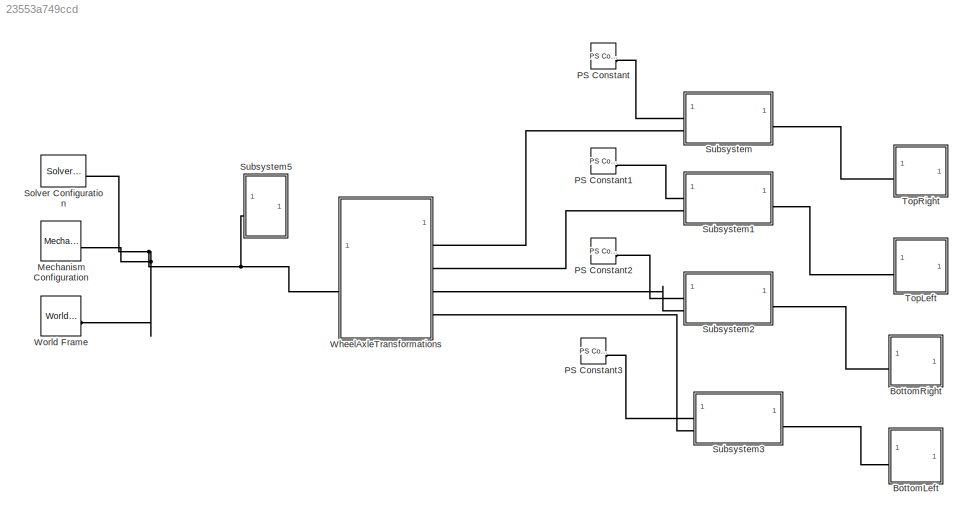
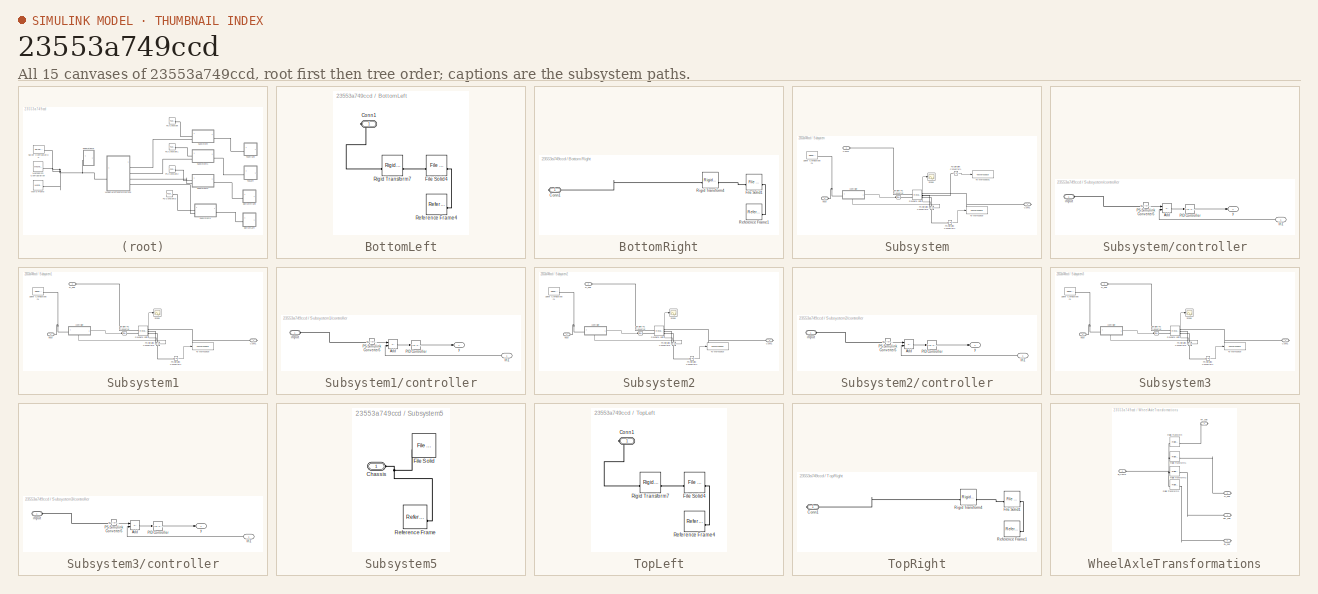
[diagram: thumbnail index - all 15 canvases of the model, root first then tree order]
MODEL slx_23553a749ccd
KIND model
CONFIG AbsTol = auto
CONFIG EnableMultiTasking = off
CONFIG FixedStep = auto
CONFIG MaxStep = auto
CONFIG MinStep = auto
CONFIG RelTol = 1e-3
CONFIG SampleTimeConstraint = Unconstrained
CONFIG SolverName = VariableStepAuto
CONFIG StartTime = 0.0
CONFIG StopTime = 10
BLOCK [SubSystem] BottomLeft
BLOCK [PMIOPort] BottomLeft/Conn1
  Side = Right
BLOCK [Reference] BottomLeft/File Solid4  REF=sm_lib/Body Elements/File Solid
  NameLocation = left
  SourceBlock = sm_lib/Body Elements/File Solid
  SourceType = File Solid
BLOCK [Reference] BottomLeft/Reference Frame4  REF=sm_lib/Frames and
Transforms/Reference
Frame
  SourceBlock = sm_lib/Frames and\nTransforms/Reference\nFrame
  SourceType = Reference\nFrame
BLOCK [Reference] BottomLeft/Rigid Transform7  REF=sm_lib/Frames and
Transforms/Rigid
Transform
  SourceBlock = sm_lib/Frames and\nTransforms/Rigid\nTransform
  SourceType = Rigid\nTransform
BLOCK [SubSystem] BottomRight
BLOCK [PMIOPort] BottomRight/Conn1
  Side = Right
BLOCK [Reference] BottomRight/File Solid1  REF=sm_lib/Body Elements/File Solid
  NameLocation = left
  SourceBlock = sm_lib/Body Elements/File Solid
  SourceType = File Solid
BLOCK [Reference] BottomRight/Reference Frame1  REF=sm_lib/Frames and
Transforms/Reference
Frame
  SourceBlock = sm_lib/Frames and\nTransforms/Reference\nFrame
  SourceType = Reference\nFrame
BLOCK [Reference] BottomRight/Rigid Transform4  REF=sm_lib/Frames and
Transforms/Rigid
Transform
  SourceBlock = sm_lib/Frames and\nTransforms/Rigid\nTransform
  SourceType = Rigid\nTransform
BLOCK [Reference] Mechanism Configuration  REF=sm_lib/Utilities/Mechanism
Configuration
  SourceBlock = sm_lib/Utilities/Mechanism\nConfiguration
  SourceType = Mechanism\nConfiguration
BLOCK [Reference] PS Constant  REF=fl_lib/Physical Signals/Sources/PS Constant
  SourceBlock = fl_lib/Physical Signals/Sources/PS Constant
  SourceType = PS Constant
BLOCK [Reference] PS Constant1  REF=fl_lib/Physical Signals/Sources/PS Constant
  SourceBlock = fl_lib/Physical Signals/Sources/PS Constant
  SourceType = PS Constant
BLOCK [Reference] PS Constant2  REF=fl_lib/Physical Signals/Sources/PS Constant
  SourceBlock = fl_lib/Physical Signals/Sources/PS Constant
  SourceType = PS Constant
BLOCK [Reference] PS Constant3  REF=fl_lib/Physical Signals/Sources/PS Constant
  SourceBlock = fl_lib/Physical Signals/Sources/PS Constant
  SourceType = PS Constant
BLOCK [Reference] Solver Configuration  REF=nesl_utility/Solver
Configuration
  SourceBlock = nesl_utility/Solver\nConfiguration
  SourceType = Solver\nConfiguration
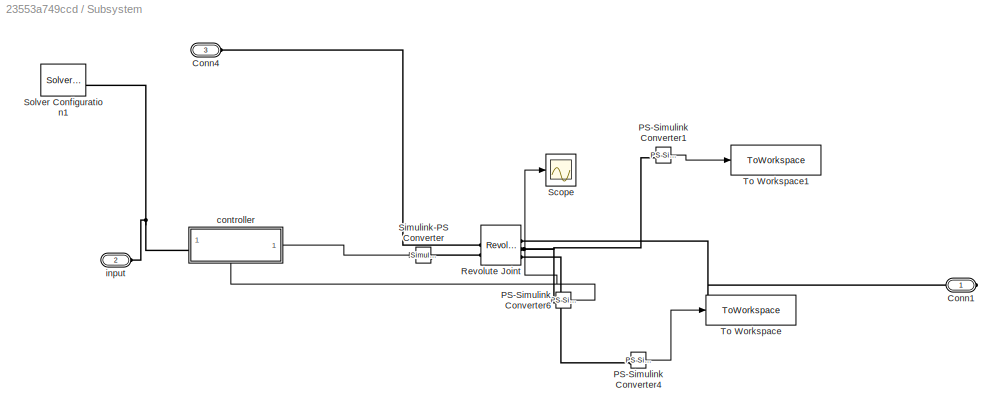
BLOCK [SubSystem] Subsystem
BLOCK [PMIOPort] Subsystem/Conn1
  Side = Right
BLOCK [PMIOPort] Subsystem/Conn4
  Port = 3
  Side = Left
BLOCK [Reference] Subsystem/PS-Simulink Converter1  REF=nesl_utility/PS-Simulink
Converter
  SourceBlock = nesl_utility/PS-Simulink\nConverter
  SourceType = PS-Simulink\nConverter
BLOCK [Reference] Subsystem/PS-Simulink Converter4  REF=nesl_utility/PS-Simulink
Converter
  SourceBlock = nesl_utility/PS-Simulink\nConverter
  SourceType = PS-Simulink\nConverter
BLOCK [Reference] Subsystem/PS-Simulink Converter6  REF=nesl_utility/PS-Simulink
Converter
  SourceBlock = nesl_utility/PS-Simulink\nConverter
  SourceType = PS-Simulink\nConverter
BLOCK [Reference] Subsystem/Revolute Joint  REF=sm_lib/Joints/Revolute Joint
  SourceBlock = sm_lib/Joints/Revolute Joint
  SourceType = Revolute Joint
BLOCK [Scope] Subsystem/Scope
  Floating = off
  NumInputPorts = 1
  ScopeSpecificationString = Simulink.scopes.TimeScopeBlockCfg('CurrentConfiguration', extmgr.ConfigurationSet(extmgr.Configuration('Core','General UI',true),extmgr.Configuration('Core','Source UI',true),extmgr.Configuration('Sources','WiredSimulink',true),extmgr.Configuration('Visuals','Time Domain',true,'SerializedDisplays',{struct('MinYLimReal','-1.12446','MaxYLimReal','0.12494','YLabelReal','','MinYLimMag','0.00000','MaxY...<+1346ch>
BLOCK [Reference] Subsystem/Simulink-PS Converter  REF=nesl_utility/Simulink-PS
Converter
  SourceBlock = nesl_utility/Simulink-PS\nConverter
  SourceType = Simulink-PS\nConverter
BLOCK [Reference] Subsystem/Solver Configuration1  REF=nesl_utility/Solver
Configuration
  SourceBlock = nesl_utility/Solver\nConfiguration
  SourceType = Solver\nConfiguration
BLOCK [ToWorkspace] Subsystem/To Workspace
  FixptAsFi = on
  MaxDataPoints = inf
  SampleTime = -1
  SaveFormat = Timeseries
  VariableName = trqtopRight
BLOCK [ToWorkspace] Subsystem/To Workspace1
  FixptAsFi = on
  MaxDataPoints = inf
  SampleTime = -1
  SaveFormat = Timeseries
  VariableName = wtopRight
BLOCK [SubSystem] Subsystem/controller
  PortSchema = {"entries":[{"content":{"sides":[{"content":{"connectorIds":["LConn1"]},"type":"ConnectorPlacement.EquallySpacedRectSide","uuid":"4241acf2-7ed6-4d1d-bdf9-96dee7444175"},{"content":{"connectorIds":["Out1"],"side":"RIGHT"},"type":"ConnectorPlacement.EquallySpacedRectSide","uuid":"205e3922-88a0-4f54-bc57-6b32e46413df"},{"content":{"connectorIds":[],"side":"TOP"},"type":"ConnectorPlacement.EquallySpac...<+392ch>  <repeated x4 — deduplicated; at blocks: controller>
BLOCK [Sum] Subsystem/controller/Add
  IconShape = rectangular
  Inputs = +-
BLOCK [Inport] Subsystem/controller/In1
BLOCK [Reference] Subsystem/controller/PID Controller  REF=slpidlib/PID Controller
  LibrarySourceBlock = simulink/Continuous/PID Controller
  SourceBlock = slpidlib/PID Controller
  SourceType = PID 1dof
BLOCK [Reference] Subsystem/controller/PS-Simulink Converter5  REF=nesl_utility/PS-Simulink
Converter
  SourceBlock = nesl_utility/PS-Simulink\nConverter
  SourceType = PS-Simulink\nConverter
BLOCK [PMIOPort] Subsystem/controller/input
  Side = Left
BLOCK [Outport] Subsystem/controller/y
BLOCK [PMIOPort] Subsystem/input
  Port = 2
  Side = Left
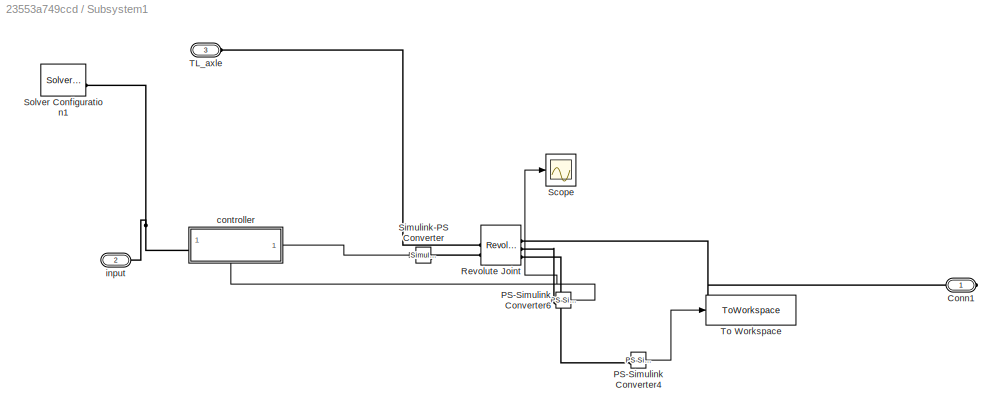
BLOCK [SubSystem] Subsystem1
BLOCK [PMIOPort] Subsystem1/Conn1
  Side = Right
BLOCK [Reference] Subsystem1/PS-Simulink Converter4  REF=nesl_utility/PS-Simulink
Converter
  SourceBlock = nesl_utility/PS-Simulink\nConverter
  SourceType = PS-Simulink\nConverter
BLOCK [Reference] Subsystem1/PS-Simulink Converter6  REF=nesl_utility/PS-Simulink
Converter
  SourceBlock = nesl_utility/PS-Simulink\nConverter
  SourceType = PS-Simulink\nConverter
BLOCK [Reference] Subsystem1/Revolute Joint  REF=sm_lib/Joints/Revolute Joint
  SourceBlock = sm_lib/Joints/Revolute Joint
  SourceType = Revolute Joint
BLOCK [Scope] Subsystem1/Scope
  Floating = off
  NumInputPorts = 1
  ScopeSpecificationString = Simulink.scopes.TimeScopeBlockCfg('CurrentConfiguration', extmgr.ConfigurationSet(extmgr.Configuration('Core','General UI',true),extmgr.Configuration('Core','Source UI',true),extmgr.Configuration('Sources','WiredSimulink',true),extmgr.Configuration('Visuals','Time Domain',true,'SerializedDisplays',{struct('MinYLimReal','-1.12143','MaxYLimReal','0.1246','YLabelReal','','MinYLimMag','0.00000','MaxYL...<+1340ch>  <repeated x3 — deduplicated; at blocks: Scope>
BLOCK [Reference] Subsystem1/Simulink-PS Converter  REF=nesl_utility/Simulink-PS
Converter
  SourceBlock = nesl_utility/Simulink-PS\nConverter
  SourceType = Simulink-PS\nConverter
BLOCK [Reference] Subsystem1/Solver Configuration1  REF=nesl_utility/Solver
Configuration
  SourceBlock = nesl_utility/Solver\nConfiguration
  SourceType = Solver\nConfiguration
BLOCK [PMIOPort] Subsystem1/TL_axle
  Port = 3
  Side = Left
BLOCK [ToWorkspace] Subsystem1/To Workspace
  FixptAsFi = on
  MaxDataPoints = inf
  SampleTime = -1
  SaveFormat = Timeseries
  VariableName = trqtopLeft
BLOCK [SubSystem] Subsystem1/controller
BLOCK [Sum] Subsystem1/controller/Add
  IconShape = rectangular
  Inputs = +-
BLOCK [Inport] Subsystem1/controller/In1
BLOCK [Reference] Subsystem1/controller/PID Controller  REF=slpidlib/PID Controller
  LibrarySourceBlock = simulink/Continuous/PID Controller
  SourceBlock = slpidlib/PID Controller
  SourceType = PID 1dof
BLOCK [Reference] Subsystem1/controller/PS-Simulink Converter5  REF=nesl_utility/PS-Simulink
Converter
  SourceBlock = nesl_utility/PS-Simulink\nConverter
  SourceType = PS-Simulink\nConverter
BLOCK [PMIOPort] Subsystem1/controller/input
  Side = Left
BLOCK [Outport] Subsystem1/controller/y
BLOCK [PMIOPort] Subsystem1/input
  Port = 2
  Side = Left
BLOCK [SubSystem] Subsystem2
BLOCK [PMIOPort] Subsystem2/Conn1
  Port = 3
  Side = Right
BLOCK [Reference] Subsystem2/PS-Simulink Converter4  REF=nesl_utility/PS-Simulink
Converter
  SourceBlock = nesl_utility/PS-Simulink\nConverter
  SourceType = PS-Simulink\nConverter
BLOCK [Reference] Subsystem2/PS-Simulink Converter6  REF=nesl_utility/PS-Simulink
Converter
  SourceBlock = nesl_utility/PS-Simulink\nConverter
  SourceType = PS-Simulink\nConverter
BLOCK [Reference] Subsystem2/Revolute Joint  REF=sm_lib/Joints/Revolute Joint
  SourceBlock = sm_lib/Joints/Revolute Joint
  SourceType = Revolute Joint
BLOCK [Scope] Subsystem2/Scope
  Floating = off
  NumInputPorts = 1
BLOCK [Reference] Subsystem2/Simulink-PS Converter  REF=nesl_utility/Simulink-PS
Converter
  SourceBlock = nesl_utility/Simulink-PS\nConverter
  SourceType = Simulink-PS\nConverter
BLOCK [Reference] Subsystem2/Solver Configuration1  REF=nesl_utility/Solver
Configuration
  SourceBlock = nesl_utility/Solver\nConfiguration
  SourceType = Solver\nConfiguration
BLOCK [PMIOPort] Subsystem2/TL_axle
  Port = 2
  Side = Left
BLOCK [ToWorkspace] Subsystem2/To Workspace
  FixptAsFi = on
  MaxDataPoints = inf
  SampleTime = -1
  SaveFormat = Timeseries
  VariableName = trqbottomRight
BLOCK [SubSystem] Subsystem2/controller
BLOCK [Sum] Subsystem2/controller/Add
  IconShape = rectangular
  Inputs = +-
BLOCK [Inport] Subsystem2/controller/In1
BLOCK [Reference] Subsystem2/controller/PID Controller  REF=slpidlib/PID Controller
  LibrarySourceBlock = simulink/Continuous/PID Controller
  SourceBlock = slpidlib/PID Controller
  SourceType = PID 1dof
BLOCK [Reference] Subsystem2/controller/PS-Simulink Converter5  REF=nesl_utility/PS-Simulink
Converter
  SourceBlock = nesl_utility/PS-Simulink\nConverter
  SourceType = PS-Simulink\nConverter
BLOCK [PMIOPort] Subsystem2/controller/input
  Side = Left
BLOCK [Outport] Subsystem2/controller/y
BLOCK [PMIOPort] Subsystem2/input
  Side = Left
BLOCK [SubSystem] Subsystem3
BLOCK [PMIOPort] Subsystem3/Conn1
  Side = Right
BLOCK [Reference] Subsystem3/PS-Simulink Converter4  REF=nesl_utility/PS-Simulink
Converter
  SourceBlock = nesl_utility/PS-Simulink\nConverter
  SourceType = PS-Simulink\nConverter
BLOCK [Reference] Subsystem3/PS-Simulink Converter6  REF=nesl_utility/PS-Simulink
Converter
  SourceBlock = nesl_utility/PS-Simulink\nConverter
  SourceType = PS-Simulink\nConverter
BLOCK [Reference] Subsystem3/Revolute Joint  REF=sm_lib/Joints/Revolute Joint
  SourceBlock = sm_lib/Joints/Revolute Joint
  SourceType = Revolute Joint
BLOCK [Scope] Subsystem3/Scope
  Floating = off
  NumInputPorts = 1
BLOCK [Reference] Subsystem3/Simulink-PS Converter  REF=nesl_utility/Simulink-PS
Converter
  SourceBlock = nesl_utility/Simulink-PS\nConverter
  SourceType = Simulink-PS\nConverter
BLOCK [Reference] Subsystem3/Solver Configuration1  REF=nesl_utility/Solver
Configuration
  SourceBlock = nesl_utility/Solver\nConfiguration
  SourceType = Solver\nConfiguration
BLOCK [PMIOPort] Subsystem3/TL_axle
  Port = 3
  Side = Left
BLOCK [ToWorkspace] Subsystem3/To Workspace
  FixptAsFi = on
  MaxDataPoints = inf
  SampleTime = -1
  SaveFormat = Timeseries
  VariableName = trqbottomLeft
BLOCK [SubSystem] Subsystem3/controller
BLOCK [Sum] Subsystem3/controller/Add
  IconShape = rectangular
  Inputs = +-
BLOCK [Inport] Subsystem3/controller/In1
BLOCK [Reference] Subsystem3/controller/PID Controller  REF=slpidlib/PID Controller
  LibrarySourceBlock = simulink/Continuous/PID Controller
  SourceBlock = slpidlib/PID Controller
  SourceType = PID 1dof
BLOCK [Reference] Subsystem3/controller/PS-Simulink Converter5  REF=nesl_utility/PS-Simulink
Converter
  SourceBlock = nesl_utility/PS-Simulink\nConverter
  SourceType = PS-Simulink\nConverter
BLOCK [PMIOPort] Subsystem3/controller/input
  Side = Left
BLOCK [Outport] Subsystem3/controller/y
BLOCK [PMIOPort] Subsystem3/input
  Port = 2
  Side = Left
BLOCK [SubSystem] Subsystem5
BLOCK [PMIOPort] Subsystem5/Chassis
  Side = Left
BLOCK [Reference] Subsystem5/File Solid  REF=sm_lib/Body Elements/File Solid
  SourceBlock = sm_lib/Body Elements/File Solid
  SourceType = File Solid
BLOCK [Reference] Subsystem5/Reference Frame  REF=sm_lib/Frames and
Transforms/Reference
Frame
  SourceBlock = sm_lib/Frames and\nTransforms/Reference\nFrame
  SourceType = Reference\nFrame
BLOCK [SubSystem] TopLeft
BLOCK [PMIOPort] TopLeft/Conn1
  Side = Right
BLOCK [Reference] TopLeft/File Solid4  REF=sm_lib/Body Elements/File Solid
  NameLocation = left
  SourceBlock = sm_lib/Body Elements/File Solid
  SourceType = File Solid
BLOCK [Reference] TopLeft/Reference Frame4  REF=sm_lib/Frames and
Transforms/Reference
Frame
  SourceBlock = sm_lib/Frames and\nTransforms/Reference\nFrame
  SourceType = Reference\nFrame
BLOCK [Reference] TopLeft/Rigid Transform7  REF=sm_lib/Frames and
Transforms/Rigid
Transform
  SourceBlock = sm_lib/Frames and\nTransforms/Rigid\nTransform
  SourceType = Rigid\nTransform
BLOCK [SubSystem] TopRight
BLOCK [PMIOPort] TopRight/Conn1
  Side = Right
BLOCK [Reference] TopRight/File Solid1  REF=sm_lib/Body Elements/File Solid
  NameLocation = left
  SourceBlock = sm_lib/Body Elements/File Solid
  SourceType = File Solid
BLOCK [Reference] TopRight/Reference Frame1  REF=sm_lib/Frames and
Transforms/Reference
Frame
  SourceBlock = sm_lib/Frames and\nTransforms/Reference\nFrame
  SourceType = Reference\nFrame
BLOCK [Reference] TopRight/Rigid Transform4  REF=sm_lib/Frames and
Transforms/Rigid
Transform
  SourceBlock = sm_lib/Frames and\nTransforms/Rigid\nTransform
  SourceType = Rigid\nTransform
BLOCK [SubSystem] WheelAxleTransformations
BLOCK [PMIOPort] WheelAxleTransformations/BL_axle
  Port = 5
  Side = Right
BLOCK [PMIOPort] WheelAxleTransformations/BR_axle
  Port = 4
  Side = Right
BLOCK [PMIOPort] WheelAxleTransformations/B_frame
  Port = 2
  Side = Left
BLOCK [Reference] WheelAxleTransformations/Rigid Transform  REF=sm_lib/Frames and
Transforms/Rigid
Transform
  SourceBlock = sm_lib/Frames and\nTransforms/Rigid\nTransform
  SourceType = Rigid\nTransform
BLOCK [Reference] WheelAxleTransformations/Rigid Transform1  REF=sm_lib/Frames and
Transforms/Rigid
Transform
  SourceBlock = sm_lib/Frames and\nTransforms/Rigid\nTransform
  SourceType = Rigid\nTransform
BLOCK [Reference] WheelAxleTransformations/Rigid Transform2  REF=sm_lib/Frames and
Transforms/Rigid
Transform
  SourceBlock = sm_lib/Frames and\nTransforms/Rigid\nTransform
  SourceType = Rigid\nTransform
BLOCK [Reference] WheelAxleTransformations/Rigid Transform3  REF=sm_lib/Frames and
Transforms/Rigid
Transform
  SourceBlock = sm_lib/Frames and\nTransforms/Rigid\nTransform
  SourceType = Rigid\nTransform
BLOCK [PMIOPort] WheelAxleTransformations/TL_axle
  Port = 3
  Side = Right
BLOCK [PMIOPort] WheelAxleTransformations/TR_axle
  Side = Right
BLOCK [Reference] World Frame  REF=sm_lib/Frames and
Transforms/World Frame
  SourceBlock = sm_lib/Frames and\nTransforms/World Frame
  SourceType = World Frame
LINE Subsystem/PS-Simulink Converter1:1 -> Subsystem/To Workspace1:1
LINE Subsystem/PS-Simulink Converter4:1 -> Subsystem/To Workspace:1
NET Subsystem/PS-Simulink Converter6:1 -> Subsystem/Scope:1, Subsystem/controller:1
LINE Subsystem/controller/Add:1 -> Subsystem/controller/PID Controller:1
LINE Subsystem/controller/In1:1 -> Subsystem/controller/Add:2
LINE Subsystem/controller/PID Controller:1 -> Subsystem/controller/y:1
LINE Subsystem/controller/PS-Simulink Converter5:1 -> Subsystem/controller/Add:1
LINE Subsystem/controller:1 -> Subsystem/Simulink-PS Converter:1
LINE Subsystem1/PS-Simulink Converter4:1 -> Subsystem1/To Workspace:1
NET Subsystem1/PS-Simulink Converter6:1 -> Subsystem1/Scope:1, Subsystem1/controller:1
LINE Subsystem1/controller/Add:1 -> Subsystem1/controller/PID Controller:1
LINE Subsystem1/controller/In1:1 -> Subsystem1/controller/Add:2
LINE Subsystem1/controller/PID Controller:1 -> Subsystem1/controller/y:1
LINE Subsystem1/controller/PS-Simulink Converter5:1 -> Subsystem1/controller/Add:1
LINE Subsystem1/controller:1 -> Subsystem1/Simulink-PS Converter:1
LINE Subsystem2/PS-Simulink Converter4:1 -> Subsystem2/To Workspace:1
NET Subsystem2/PS-Simulink Converter6:1 -> Subsystem2/Scope:1, Subsystem2/controller:1
LINE Subsystem2/controller/Add:1 -> Subsystem2/controller/PID Controller:1
LINE Subsystem2/controller/In1:1 -> Subsystem2/controller/Add:2
LINE Subsystem2/controller/PID Controller:1 -> Subsystem2/controller/y:1
LINE Subsystem2/controller/PS-Simulink Converter5:1 -> Subsystem2/controller/Add:1
LINE Subsystem2/controller:1 -> Subsystem2/Simulink-PS Converter:1
LINE Subsystem3/PS-Simulink Converter4:1 -> Subsystem3/To Workspace:1
NET Subsystem3/PS-Simulink Converter6:1 -> Subsystem3/Scope:1, Subsystem3/controller:1
LINE Subsystem3/controller/Add:1 -> Subsystem3/controller/PID Controller:1
LINE Subsystem3/controller/In1:1 -> Subsystem3/controller/Add:2
LINE Subsystem3/controller/PID Controller:1 -> Subsystem3/controller/y:1
LINE Subsystem3/controller/PS-Simulink Converter5:1 -> Subsystem3/controller/Add:1
LINE Subsystem3/controller:1 -> Subsystem3/Simulink-PS Converter:1
PLINE BottomLeft/Conn1:RConn1 -- BottomLeft/Rigid Transform7:RConn1
PLINE BottomLeft/File Solid4:LConn1 -- BottomLeft/Rigid Transform7:LConn1
PLINE BottomLeft/File Solid4:RConn1 -- BottomLeft/Reference Frame4:RConn1
PLINE BottomLeft:RConn1 -- Subsystem3:RConn1
PLINE BottomRight/Conn1:RConn1 -- BottomRight/Rigid Transform4:RConn1
PLINE BottomRight/File Solid1:LConn1 -- BottomRight/Rigid Transform4:LConn1
PLINE BottomRight/File Solid1:RConn1 -- BottomRight/Reference Frame1:RConn1
PLINE BottomRight:RConn1 -- Subsystem2:RConn1
PNET net1: Mechanism Configuration:RConn1 -- Solver Configuration:RConn1 -- Subsystem5:LConn1 -- WheelAxleTransformations:LConn1 -- World Frame:RConn1
PLINE PS Constant1:RConn1 -- Subsystem1:LConn1
PLINE PS Constant2:RConn1 -- Subsystem2:LConn1
PLINE PS Constant3:RConn1 -- Subsystem3:LConn1
PLINE PS Constant:RConn1 -- Subsystem:LConn1
PLINE Subsystem/Conn1:RConn1 -- Subsystem/Revolute Joint:RConn1
PLINE Subsystem/Conn4:RConn1 -- Subsystem/Revolute Joint:LConn1
PNET net2: Subsystem/PS-Simulink Converter1:LConn1 -- Subsystem/PS-Simulink Converter6:LConn1 -- Subsystem/Revolute Joint:RConn2
PLINE Subsystem/PS-Simulink Converter4:LConn1 -- Subsystem/Revolute Joint:RConn3
PLINE Subsystem/Revolute Joint:LConn2 -- Subsystem/Simulink-PS Converter:RConn1
PNET net3: Subsystem/Solver Configuration1:RConn1 -- Subsystem/controller:LConn1 -- Subsystem/input:RConn1
PLINE Subsystem/controller/PS-Simulink Converter5:LConn1 -- Subsystem/controller/input:RConn1
PLINE Subsystem1/Conn1:RConn1 -- Subsystem1/Revolute Joint:RConn1
PLINE Subsystem1/PS-Simulink Converter4:LConn1 -- Subsystem1/Revolute Joint:RConn3
PLINE Subsystem1/PS-Simulink Converter6:LConn1 -- Subsystem1/Revolute Joint:RConn2
PLINE Subsystem1/Revolute Joint:LConn1 -- Subsystem1/TL_axle:RConn1
PLINE Subsystem1/Revolute Joint:LConn2 -- Subsystem1/Simulink-PS Converter:RConn1
PNET net4: Subsystem1/Solver Configuration1:RConn1 -- Subsystem1/controller:LConn1 -- Subsystem1/input:RConn1
PLINE Subsystem1/controller/PS-Simulink Converter5:LConn1 -- Subsystem1/controller/input:RConn1
PLINE Subsystem1:LConn2 -- WheelAxleTransformations:RConn2
PLINE Subsystem1:RConn1 -- TopLeft:RConn1
PLINE Subsystem2/Conn1:RConn1 -- Subsystem2/Revolute Joint:RConn1
PLINE Subsystem2/PS-Simulink Converter4:LConn1 -- Subsystem2/Revolute Joint:RConn3
PLINE Subsystem2/PS-Simulink Converter6:LConn1 -- Subsystem2/Revolute Joint:RConn2
PLINE Subsystem2/Revolute Joint:LConn1 -- Subsystem2/TL_axle:RConn1
PLINE Subsystem2/Revolute Joint:LConn2 -- Subsystem2/Simulink-PS Converter:RConn1
PNET net5: Subsystem2/Solver Configuration1:RConn1 -- Subsystem2/controller:LConn1 -- Subsystem2/input:RConn1
PLINE Subsystem2/controller/PS-Simulink Converter5:LConn1 -- Subsystem2/controller/input:RConn1
PLINE Subsystem2:LConn2 -- WheelAxleTransformations:RConn3
PLINE Subsystem3/Conn1:RConn1 -- Subsystem3/Revolute Joint:RConn1
PLINE Subsystem3/PS-Simulink Converter4:LConn1 -- Subsystem3/Revolute Joint:RConn3
PLINE Subsystem3/PS-Simulink Converter6:LConn1 -- Subsystem3/Revolute Joint:RConn2
PLINE Subsystem3/Revolute Joint:LConn1 -- Subsystem3/TL_axle:RConn1
PLINE Subsystem3/Revolute Joint:LConn2 -- Subsystem3/Simulink-PS Converter:RConn1
PNET net6: Subsystem3/Solver Configuration1:RConn1 -- Subsystem3/controller:LConn1 -- Subsystem3/input:RConn1
PLINE Subsystem3/controller/PS-Simulink Converter5:LConn1 -- Subsystem3/controller/input:RConn1
PLINE Subsystem3:LConn2 -- WheelAxleTransformations:RConn4
PNET net7: Subsystem5/Chassis:RConn1 -- Subsystem5/File Solid:RConn1 -- Subsystem5/Reference Frame:RConn1
PLINE Subsystem:LConn2 -- WheelAxleTransformations:RConn1
PLINE Subsystem:RConn1 -- TopRight:RConn1
PLINE TopLeft/Conn1:RConn1 -- TopLeft/Rigid Transform7:RConn1
PLINE TopLeft/File Solid4:LConn1 -- TopLeft/Rigid Transform7:LConn1
PLINE TopLeft/File Solid4:RConn1 -- TopLeft/Reference Frame4:RConn1
PLINE TopRight/Conn1:RConn1 -- TopRight/Rigid Transform4:RConn1
PLINE TopRight/File Solid1:LConn1 -- TopRight/Rigid Transform4:LConn1
PLINE TopRight/File Solid1:RConn1 -- TopRight/Reference Frame1:RConn1
PLINE WheelAxleTransformations/BL_axle:RConn1 -- WheelAxleTransformations/Rigid Transform3:RConn1
PLINE WheelAxleTransformations/BR_axle:RConn1 -- WheelAxleTransformations/Rigid Transform2:RConn1
PNET net8: WheelAxleTransformations/B_frame:RConn1 -- WheelAxleTransformations/Rigid Transform1:LConn1 -- WheelAxleTransformations/Rigid Transform2:LConn1 -- WheelAxleTransformations/Rigid Transform3:LConn1 -- WheelAxleTransformations/Rigid Transform:LConn1
PLINE WheelAxleTransformations/Rigid Transform1:RConn1 -- WheelAxleTransformations/TL_axle:RConn1
PLINE WheelAxleTransformations/Rigid Transform:RConn1 -- WheelAxleTransformations/TR_axle:RConn1
note: NET lines group one-source signal fan-out (src -> all destinations, sorted); 1:1 wires keep LINE; PNET lines group multi-terminal physical nets as a canonical sorted terminal list (undirected conserving connections); 2-terminal nets keep the pairwise PLINE form
